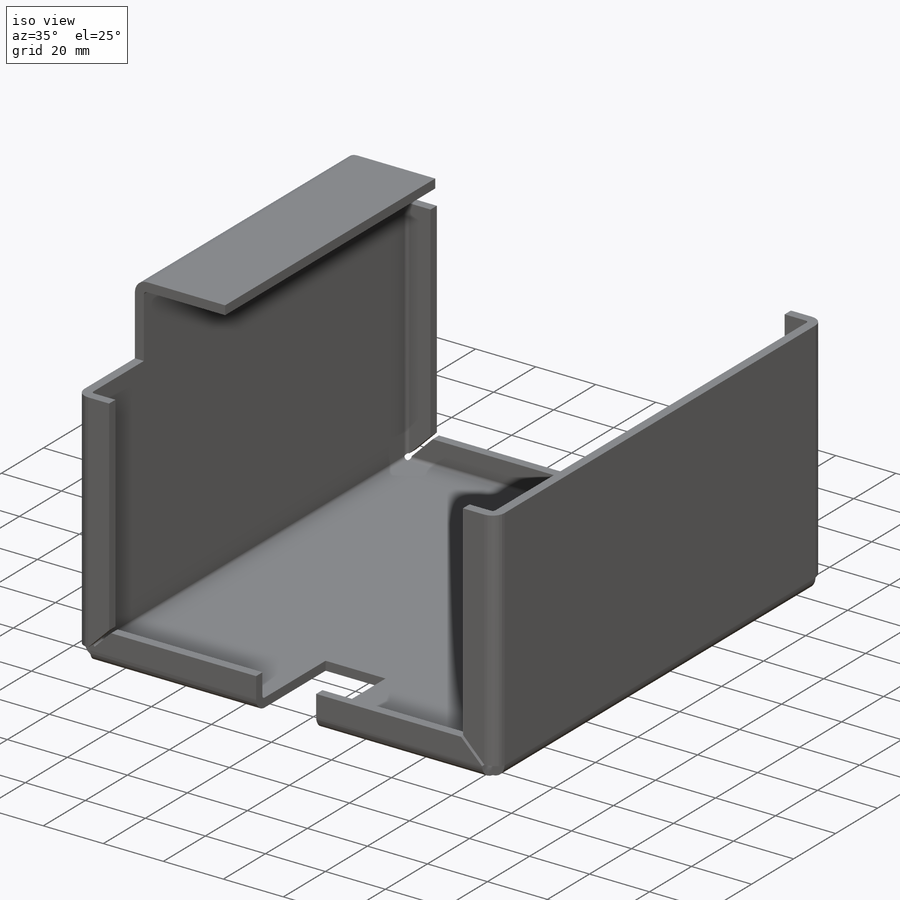
[diagram: iso view]
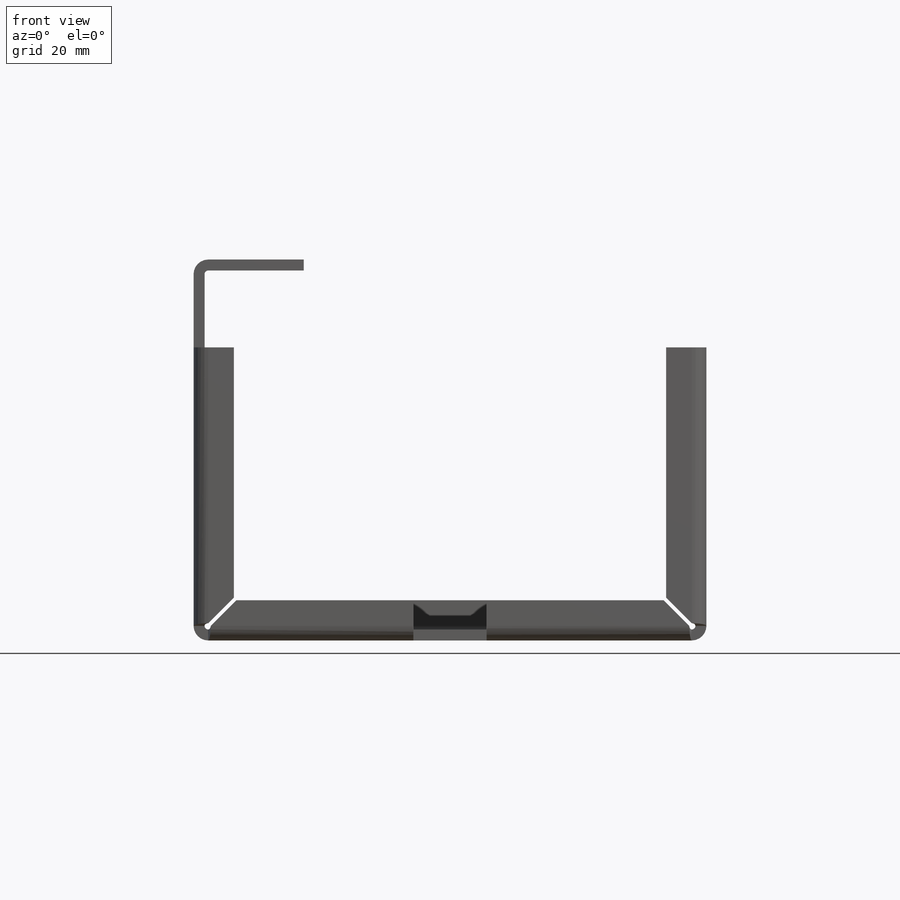
[diagram: front view]
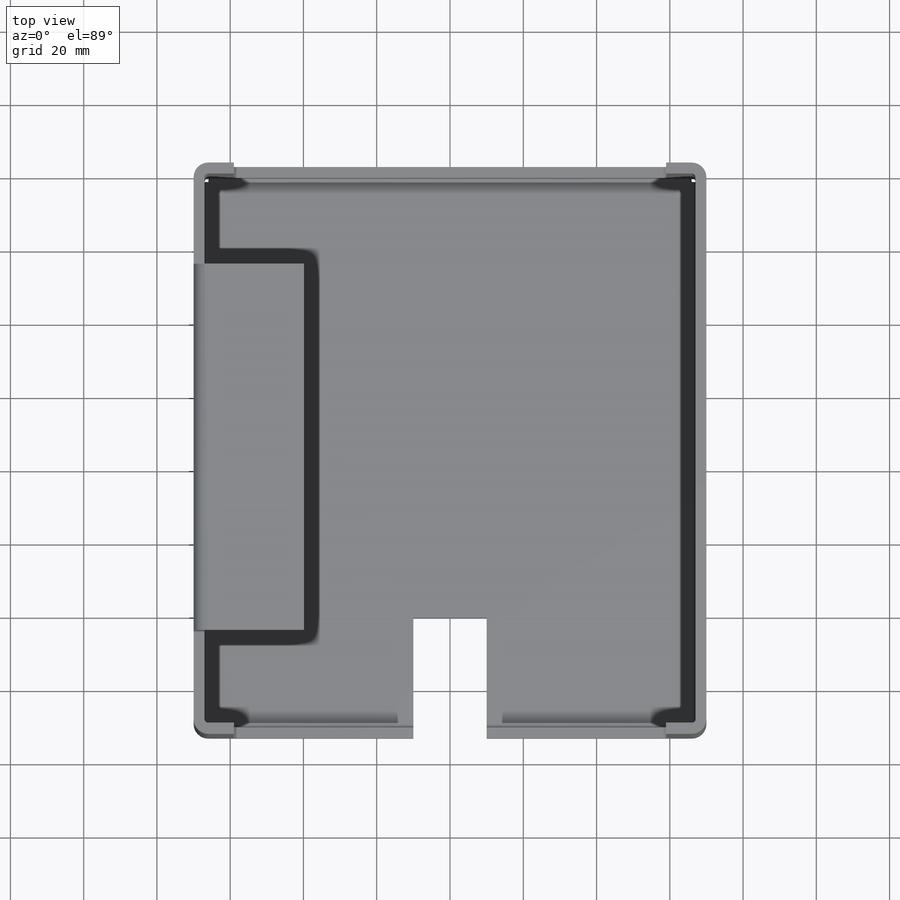
[diagram: top view]
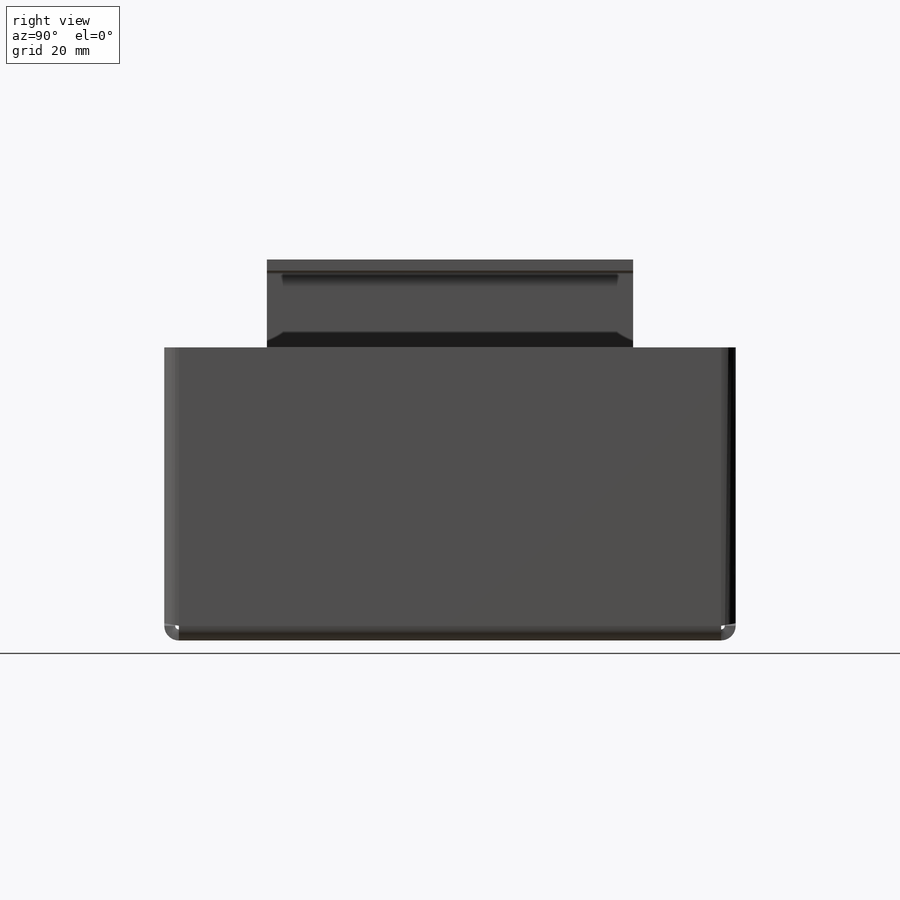
[diagram: right view]
SOLIDWORKS PART (.sldprt)
format: sldprt  version: not decoded by parser v0  size: 741,888 bytes
history: native  units: mm
features: sketch x7, sheet_metal_op x6, mirror x4, material x1, plane x1, cut_extrude x1 + 13 further entries (+16 scaffold rows collapsed)
feature tree (49):
  scaffold x16  (default folders/planes/origin — collapsed)
  material  "Material <sin especificar>"
  sketch  "Croquis1"  dims[c1.D1=~60.381789mm c2.D1=140.0mm c2.D2=80.0mm c2.D3=80.0mm]
  sheet_metal_op  "Chapa metálica2"  Espesor=3mm
  sheet_metal_op  "Brida base2"
  sheet_metal_op  "Pliegue base4"
  plane  "Plano1"
  sketch  "Croquis5"  dims[D1=8.0mm]
  sheet_metal_op  "Pliegue a inglete1"
  sheet_metal_op  "Pliegue a inglete2"
  sheet_metal_op  "Pliegue a inglete3"
  mirror  "Simetría1"
  mirror  "Simetría de pliegue2"
  mirror  "Simetría de pliegue3"
  sketch  "Croquis6"  dims[c1.D1=50.0mm c1.D2=100.0mm c1.Pestaña1=0.0 c2.D1=1.0mm]
  sketch  "Croquis7"  dims[D1=30.0mm]
  "Transformación de croquis3"
  mirror  "Pliegue de croquis1"
  "Transformación de croquis6"
  sketch  "Croquis9"  dims[D1=60.0mm D2=20.0mm D3=40.0mm]
  cut_extrude  "Cortar-Extruir1"  [1 undecoded]
  "Transformación de croquis7"
  sketch  "Croquis9-1"  dims[D1=60.0mm D2=20.0mm D3=40.0mm]
  "Chapa desplegada2"
  sketch  "Líneas de pliegue2"
  "Aplanar-<Pliegue base4>1"
  "Aplanar-<Pliegue a inglete1>1"
  "Aplanar-<Pliegue a inglete2>1"
  "Aplanar-<Pliegue a inglete3>1"
  "Aplanar-<Simetría de pliegue1>1"
  "Aplanar-<Simetría de pliegue2>1"
  "Aplanar-<Simetría de pliegue3>1"
  "Aplanar-<Pliegue de croquis1>1"
  "Transformación de croquis2"
decode coverage: 7 of 18 modeling features carry decoded parameters; 13 rows unclassified (native names shown)
note: ~ marks probable driven/reference dimensions
note: 1 parameter value undecoded
note: suppression state not decoded; provenance and decode notes live in map.json
